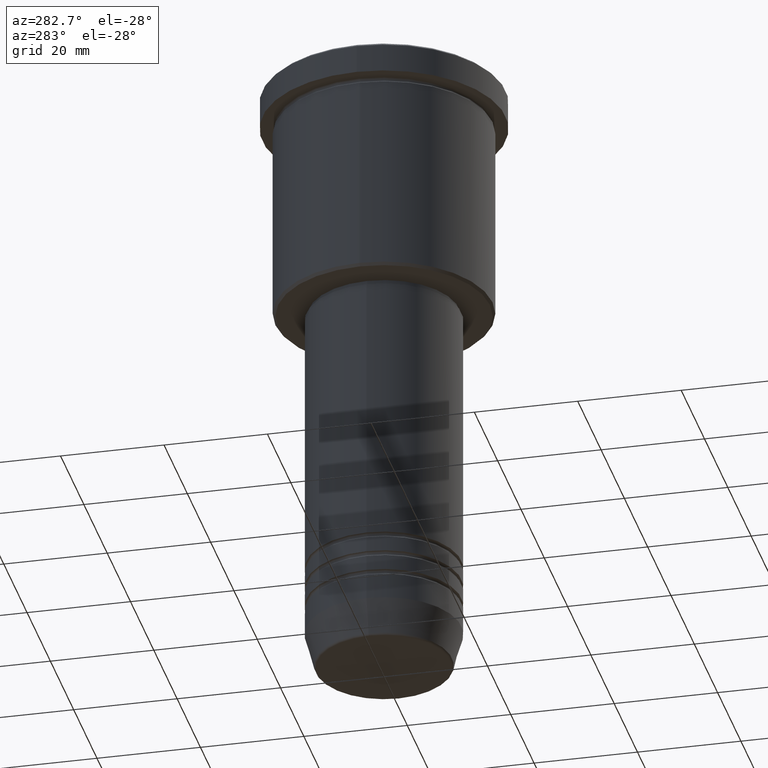
[diagram: clean part render]
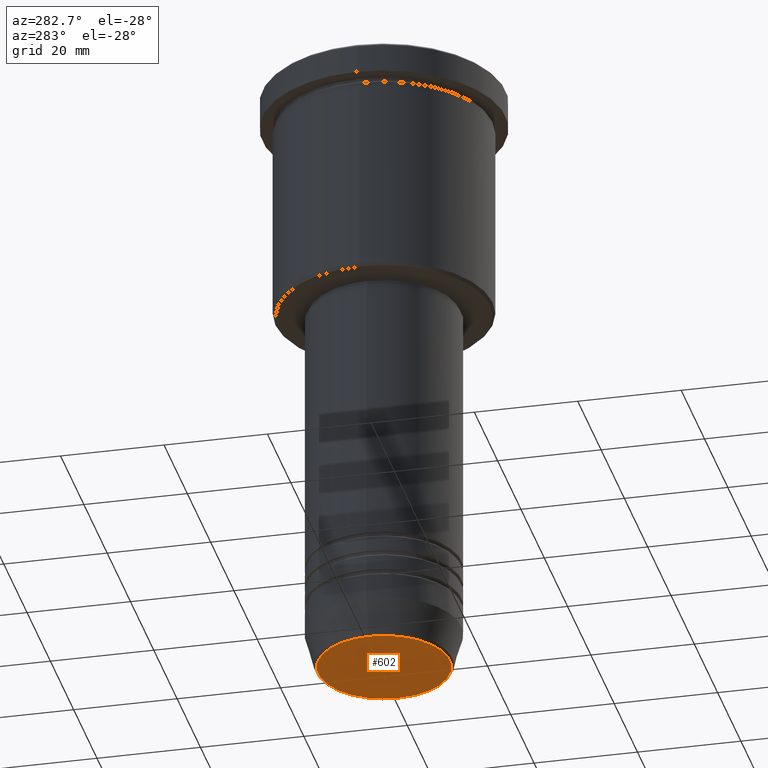
[diagram: same view with one face highlighted and labeled with its STEP entity id]
A machine part, auxiliary view. The second image highlights one B-rep face of the part: STEP entity #602.
In plain terms, the highlighted planar face has unit normal (0, -0, 1).
Its self-contained STEP definition (entity closure, byte-faithful):
#5 = DIRECTION ( 'NONE',  ( 1.000000000000000000, 0.000000000000000000, 0.000000000000000000 ) ) ;
#61 = DIRECTION ( 'NONE',  ( 1.000000000000000000, 0.000000000000000000, 0.000000000000000000 ) ) ;
#89 = AXIS2_PLACEMENT_3D ( 'NONE', #410, #934, #61 ) ;
#103 = CIRCLE ( 'NONE', #89, 12.74069215899265828 ) ;
#137 = CARTESIAN_POINT ( 'NONE',  ( -12.74069215899265828, 1.589857736427681035E-15, -121.0000000000000000 ) ) ;
#190 = CIRCLE ( 'NONE', #1094, 12.74069215899265828 ) ;
#216 = VERTEX_POINT ( 'NONE', #477 ) ;
#248 = EDGE_CURVE ( 'NONE', #216, #769, #190, .T. ) ;
#286 = DIRECTION ( 'NONE',  ( 1.000000000000000000, 0.000000000000000000, 0.000000000000000000 ) ) ;
#350 = EDGE_LOOP ( 'NONE', ( #768, #563 ) ) ;
#402 = PLANE ( 'NONE',  #844 ) ;
#410 = CARTESIAN_POINT ( 'NONE',  ( 0.000000000000000000, 0.000000000000000000, -121.0000000000000000 ) ) ;
#470 = FACE_OUTER_BOUND ( 'NONE', #350, .T. ) ;
#475 = DIRECTION ( 'NONE',  ( 0.000000000000000000, -0.000000000000000000, 1.000000000000000000 ) ) ;
#477 = CARTESIAN_POINT ( 'NONE',  ( 12.74069215899265828, 0.000000000000000000, -121.0000000000000000 ) ) ;
#563 = ORIENTED_EDGE ( 'NONE', *, *, #705, .T. ) ;
#602 = ADVANCED_FACE ( 'NONE', ( #470 ), #402, .F. ) ;
#705 = EDGE_CURVE ( 'NONE', #769, #216, #103, .T. ) ;
#768 = ORIENTED_EDGE ( 'NONE', *, *, #248, .T. ) ;
#769 = VERTEX_POINT ( 'NONE', #137 ) ;
#828 = DIRECTION ( 'NONE',  ( 0.000000000000000000, 0.000000000000000000, -1.000000000000000000 ) ) ;
#844 = AXIS2_PLACEMENT_3D ( 'NONE', #1001, #475, #5 ) ;
#914 = CARTESIAN_POINT ( 'NONE',  ( 0.000000000000000000, 0.000000000000000000, -121.0000000000000000 ) ) ;
#934 = DIRECTION ( 'NONE',  ( 0.000000000000000000, 0.000000000000000000, -1.000000000000000000 ) ) ;
#1001 = CARTESIAN_POINT ( 'NONE',  ( 0.000000000000000000, 0.000000000000000000, -121.0000000000000000 ) ) ;
#1094 = AXIS2_PLACEMENT_3D ( 'NONE', #914, #828, #286 ) ;